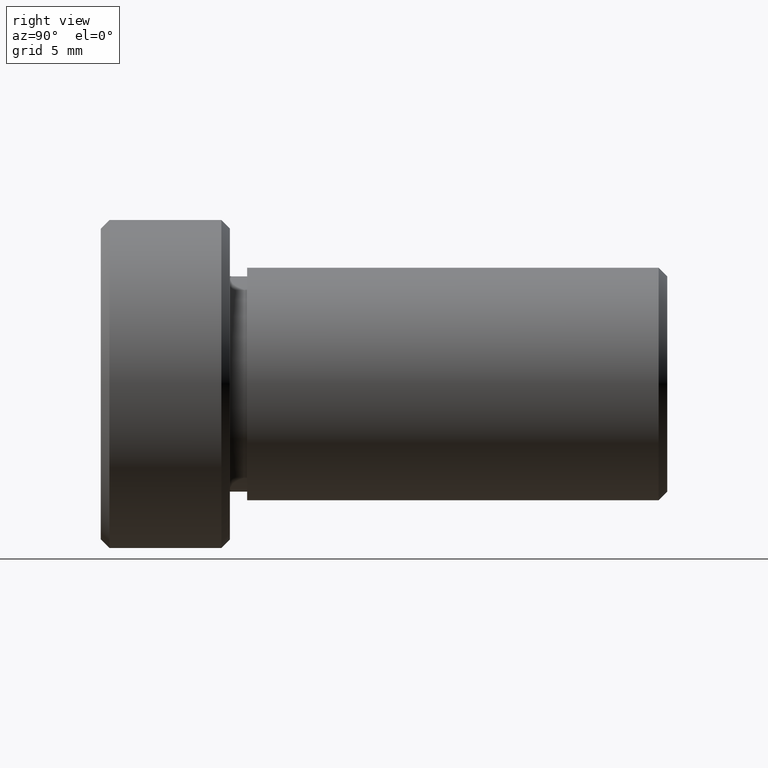
[diagram: clean part render]
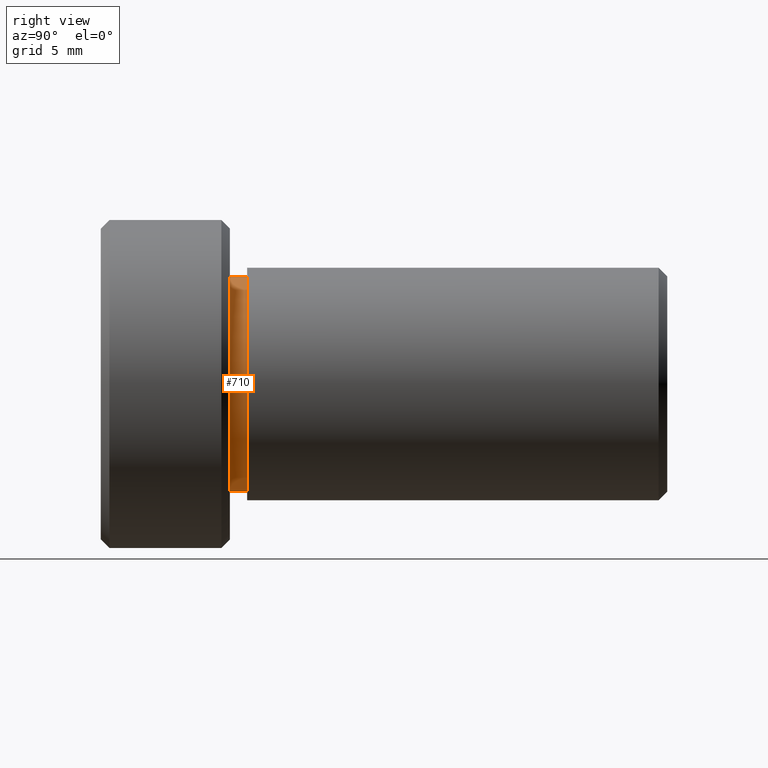
[diagram: same view with one face highlighted and labeled with its STEP entity id]
A machine part, right view. The second image highlights one B-rep face of the part: STEP entity #710.
In plain terms, the highlighted cylindrical surface (partial cylindrical patch) has radius 6.25 mm, axis along (-0, 1, -0).
Its self-contained STEP definition (entity closure, byte-faithful):
#12 = EDGE_LOOP ( 'NONE', ( #23, #82, #508, #115 ) ) ;
#23 = ORIENTED_EDGE ( 'NONE', *, *, #795, .T. ) ;
#29 = DIRECTION ( 'NONE',  ( -0.0000000000000000000, 1.000000000000000000, -0.0000000000000000000 ) ) ;
#32 = CARTESIAN_POINT ( 'NONE',  ( 0.0000000000000000000, 2.642854174566895900, 6.250000000000007100 ) ) ;
#82 = ORIENTED_EDGE ( 'NONE', *, *, #141, .T. ) ;
#115 = ORIENTED_EDGE ( 'NONE', *, *, #133, .F. ) ;
#133 = EDGE_CURVE ( 'NONE', #191, #225, #852, .T. ) ;
#136 = CIRCLE ( 'NONE', #738, 6.250000000000007100 ) ;
#141 = EDGE_CURVE ( 'NONE', #277, #496, #590, .T. ) ;
#153 = CARTESIAN_POINT ( 'NONE',  ( 0.0000000000000000000, 1.642854174566894800, 0.0000000000000000000 ) ) ;
#191 = VERTEX_POINT ( 'NONE', #873 ) ;
#225 = VERTEX_POINT ( 'NONE', #32 ) ;
#226 = VECTOR ( 'NONE', #794, 1000.000000000000000 ) ;
#277 = VERTEX_POINT ( 'NONE', #722 ) ;
#291 = CARTESIAN_POINT ( 'NONE',  ( 0.0000000000000000000, 44.59859774529311900, 0.0000000000000000000 ) ) ;
#320 = EDGE_CURVE ( 'NONE', #225, #496, #374, .T. ) ;
#322 = CYLINDRICAL_SURFACE ( 'NONE', #633, 6.250000000000007100 ) ;
#330 = DIRECTION ( 'NONE',  ( -0.0000000000000000000, 1.000000000000000000, -0.0000000000000000000 ) ) ;
#374 = CIRCLE ( 'NONE', #423, 6.250000000000007100 ) ;
#423 = AXIS2_PLACEMENT_3D ( 'NONE', #737, #330, #810 ) ;
#440 = FACE_OUTER_BOUND ( 'NONE', #12, .T. ) ;
#478 = CARTESIAN_POINT ( 'NONE',  ( 7.654042494670966500E-016, 2.642854174566895900, -6.250000000000007100 ) ) ;
#496 = VERTEX_POINT ( 'NONE', #478 ) ;
#508 = ORIENTED_EDGE ( 'NONE', *, *, #320, .F. ) ;
#548 = VECTOR ( 'NONE', #29, 1000.000000000000000 ) ;
#560 = DIRECTION ( 'NONE',  ( 0.0000000000000000000, 0.0000000000000000000, 1.000000000000000000 ) ) ;
#590 = LINE ( 'NONE', #624, #226 ) ;
#624 = CARTESIAN_POINT ( 'NONE',  ( 7.654042494670966500E-016, 44.59859774529311900, -6.250000000000007100 ) ) ;
#633 = AXIS2_PLACEMENT_3D ( 'NONE', #291, #766, #560 ) ;
#708 = DIRECTION ( 'NONE',  ( -0.0000000000000000000, 1.000000000000000000, -0.0000000000000000000 ) ) ;
#710 = ADVANCED_FACE ( 'NONE', ( #440 ), #322, .T. ) ;
#722 = CARTESIAN_POINT ( 'NONE',  ( 7.654042494670966500E-016, 1.642854174566894800, -6.250000000000007100 ) ) ;
#733 = CARTESIAN_POINT ( 'NONE',  ( 0.0000000000000000000, 44.59859774529311900, 6.250000000000007100 ) ) ;
#737 = CARTESIAN_POINT ( 'NONE',  ( 0.0000000000000000000, 2.642854174566895900, 0.0000000000000000000 ) ) ;
#738 = AXIS2_PLACEMENT_3D ( 'NONE', #153, #708, #779 ) ;
#766 = DIRECTION ( 'NONE',  ( -0.0000000000000000000, 1.000000000000000000, -0.0000000000000000000 ) ) ;
#779 = DIRECTION ( 'NONE',  ( 0.0000000000000000000, 0.0000000000000000000, 1.000000000000000000 ) ) ;
#794 = DIRECTION ( 'NONE',  ( -0.0000000000000000000, 1.000000000000000000, -0.0000000000000000000 ) ) ;
#795 = EDGE_CURVE ( 'NONE', #191, #277, #136, .T. ) ;
#810 = DIRECTION ( 'NONE',  ( 0.0000000000000000000, 0.0000000000000000000, 1.000000000000000000 ) ) ;
#852 = LINE ( 'NONE', #733, #548 ) ;
#873 = CARTESIAN_POINT ( 'NONE',  ( 0.0000000000000000000, 1.642854174566894800, 6.250000000000007100 ) ) ;